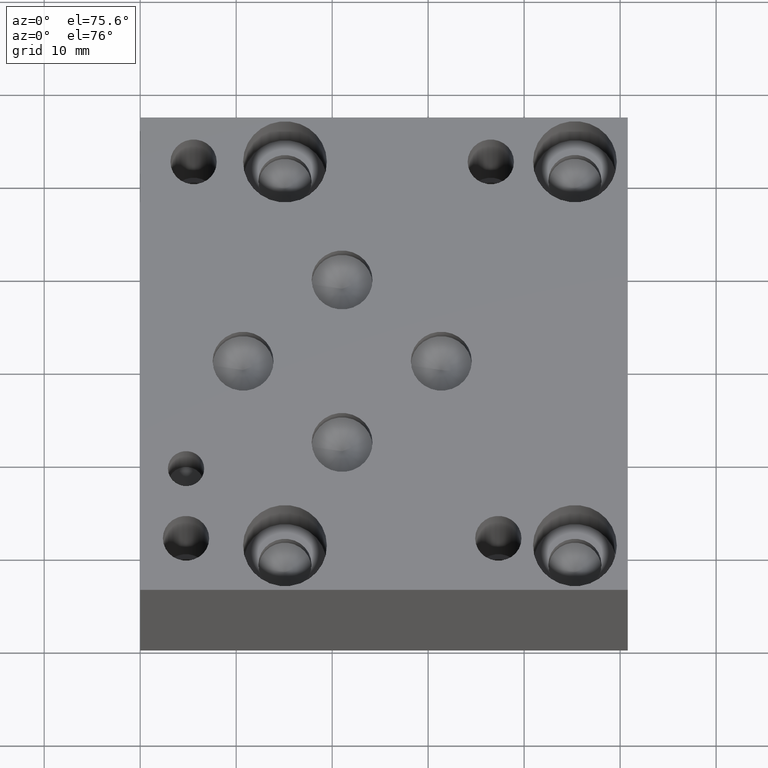
[diagram: clean part render]
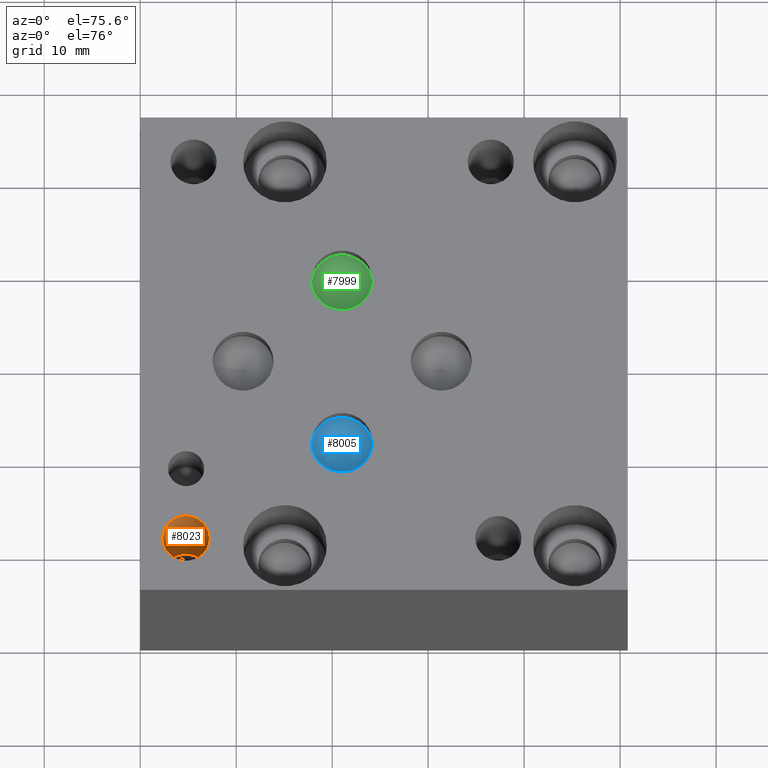
[diagram: same view with three faces highlighted in distinct colors, each labeled with its STEP entity id]
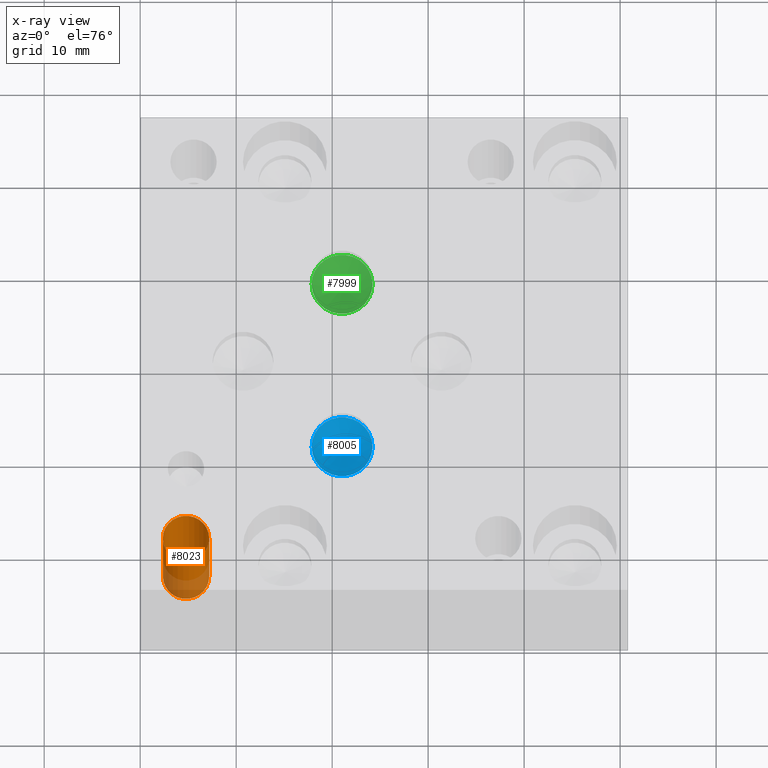
[diagram: x-ray of the same camera — body ghosted, the three highlighted faces saturated]
A machine part, auxiliary view with three faces highlighted in distinct colors.
The next image is the same camera in x-ray (body ghosted, the three faces saturated) — at least one of them is partly hidden behind the body in this view.
Their STEP definitions:

[orange] entity #8023 — the highlighted cylindrical surface (bore or boss wall) has radius 2.413 mm, axis along (0, 0, 1).
#150=CIRCLE('',#8474,2.413);
#151=CIRCLE('',#8475,2.413);
#153=CIRCLE('',#8478,2.413);
#154=CIRCLE('',#8479,2.413);
#186=CYLINDRICAL_SURFACE('',#8477,2.413);
#902=FACE_OUTER_BOUND('',#1351,.T.);
#1351=EDGE_LOOP('',(#6958,#6959,#6960,#6961,#6962,#6963));
#2177=LINE('',#13508,#2984);
#2984=VECTOR('',#10156,2.413);
#3740=VERTEX_POINT('',#13497);
#3741=VERTEX_POINT('',#13498);
#3743=VERTEX_POINT('',#13504);
#3744=VERTEX_POINT('',#13505);
#4829=EDGE_CURVE('',#3740,#3741,#150,.T.);
#4830=EDGE_CURVE('',#3741,#3740,#151,.T.);
#4832=EDGE_CURVE('',#3743,#3744,#153,.T.);
#4833=EDGE_CURVE('',#3744,#3743,#154,.T.);
#4834=EDGE_CURVE('',#3744,#3741,#2177,.T.);
#6958=ORIENTED_EDGE('',*,*,#4832,.F.);
#6959=ORIENTED_EDGE('',*,*,#4833,.F.);
#6960=ORIENTED_EDGE('',*,*,#4834,.T.);
#6961=ORIENTED_EDGE('',*,*,#4829,.F.);
#6962=ORIENTED_EDGE('',*,*,#4830,.F.);
#6963=ORIENTED_EDGE('',*,*,#4834,.F.);
#8023=ADVANCED_FACE('',(#902),#186,.F.);
#8474=AXIS2_PLACEMENT_3D('',#13499,#10144,#10145);
#8475=AXIS2_PLACEMENT_3D('',#13500,#10146,#10147);
#8477=AXIS2_PLACEMENT_3D('',#13503,#10150,#10151);
#8478=AXIS2_PLACEMENT_3D('',#13506,#10152,#10153);
#8479=AXIS2_PLACEMENT_3D('',#13507,#10154,#10155);
#10144=DIRECTION('center_axis',(0.,0.,1.));
#10145=DIRECTION('ref_axis',(1.,0.,0.));
#10146=DIRECTION('center_axis',(0.,0.,1.));
#10147=DIRECTION('ref_axis',(1.,0.,0.));
#10150=DIRECTION('center_axis',(0.,0.,1.));
#10151=DIRECTION('ref_axis',(1.,0.,0.));
#10152=DIRECTION('center_axis',(0.,0.,-1.));
#10153=DIRECTION('ref_axis',(1.,0.,0.));
#10154=DIRECTION('center_axis',(0.,0.,-1.));
#10155=DIRECTION('ref_axis',(1.,0.,0.));
#10156=DIRECTION('',(0.,0.,-1.));
#13497=CARTESIAN_POINT('',(7.1882,5.5372,9.398));
#13498=CARTESIAN_POINT('',(2.3622,5.5372,9.398));
#13499=CARTESIAN_POINT('Origin',(4.7752,5.5372,9.398));
#13500=CARTESIAN_POINT('Origin',(4.7752,5.5372,9.398));
#13503=CARTESIAN_POINT('Origin',(4.7752,5.5372,17.399));
#13504=CARTESIAN_POINT('',(7.1882,5.5372,25.4));
#13505=CARTESIAN_POINT('',(2.3622,5.5372,25.4));
#13506=CARTESIAN_POINT('Origin',(4.7752,5.5372,25.4));
#13507=CARTESIAN_POINT('Origin',(4.7752,5.5372,25.4));
#13508=CARTESIAN_POINT('',(2.3622,5.5372,17.399));

[blue] entity #8005 — the highlighted conical surface has half-angle 60 deg.
#29=CONICAL_SURFACE('',#8425,1.5875,1.0471975511966);
#119=CIRCLE('',#8426,3.175);
#120=CIRCLE('',#8427,3.175);
#884=FACE_OUTER_BOUND('',#1329,.T.);
#1329=EDGE_LOOP('',(#6877,#6878,#6879,#6880));
#2163=LINE('',#13402,#2970);
#2970=VECTOR('',#10036,1.5875);
#3703=VERTEX_POINT('',#13398);
#3704=VERTEX_POINT('',#13399);
#3705=VERTEX_POINT('',#13401);
#4784=EDGE_CURVE('',#3703,#3704,#119,.T.);
#4785=EDGE_CURVE('',#3704,#3705,#2163,.T.);
#4786=EDGE_CURVE('',#3704,#3703,#120,.T.);
#6877=ORIENTED_EDGE('',*,*,#4784,.T.);
#6878=ORIENTED_EDGE('',*,*,#4785,.T.);
#6879=ORIENTED_EDGE('',*,*,#4785,.F.);
#6880=ORIENTED_EDGE('',*,*,#4786,.T.);
#8005=ADVANCED_FACE('',(#884),#29,.F.);
#8425=AXIS2_PLACEMENT_3D('',#13397,#10032,#10033);
#8426=AXIS2_PLACEMENT_3D('',#13400,#10034,#10035);
#8427=AXIS2_PLACEMENT_3D('',#13403,#10037,#10038);
#10032=DIRECTION('center_axis',(0.,0.,1.));
#10033=DIRECTION('ref_axis',(1.,0.,0.));
#10034=DIRECTION('center_axis',(0.,0.,1.));
#10035=DIRECTION('ref_axis',(1.,0.,0.));
#10036=DIRECTION('',(0.866025403784439,1.06057523872491E-16,-0.5));
#10037=DIRECTION('center_axis',(0.,0.,1.));
#10038=DIRECTION('ref_axis',(1.,0.,0.));
#13397=CARTESIAN_POINT('Origin',(21.0312,15.8496,22.6503664476615));
#13398=CARTESIAN_POINT('',(24.2062,15.8496,23.56691));
#13399=CARTESIAN_POINT('',(17.8562,15.8496,23.56691));
#13400=CARTESIAN_POINT('Origin',(21.0312,15.8496,23.56691));
#13401=CARTESIAN_POINT('',(21.0312,15.8496,21.7338228953229));
#13402=CARTESIAN_POINT('',(19.4437,15.8496,22.6503664476615));
#13403=CARTESIAN_POINT('Origin',(21.0312,15.8496,23.56691));

[green] entity #7999 — the highlighted conical surface has half-angle 60 deg.
#26=CONICAL_SURFACE('',#8407,1.5875,1.0471975511966);
#107=CIRCLE('',#8408,3.175);
#108=CIRCLE('',#8409,3.175);
#878=FACE_OUTER_BOUND('',#1323,.T.);
#1323=EDGE_LOOP('',(#6847,#6848,#6849,#6850));
#2157=LINE('',#13363,#2964);
#2964=VECTOR('',#9994,1.5875);
#3688=VERTEX_POINT('',#13359);
#3689=VERTEX_POINT('',#13360);
#3690=VERTEX_POINT('',#13362);
#4766=EDGE_CURVE('',#3688,#3689,#107,.T.);
#4767=EDGE_CURVE('',#3689,#3690,#2157,.T.);
#4768=EDGE_CURVE('',#3689,#3688,#108,.T.);
#6847=ORIENTED_EDGE('',*,*,#4766,.T.);
#6848=ORIENTED_EDGE('',*,*,#4767,.T.);
#6849=ORIENTED_EDGE('',*,*,#4767,.F.);
#6850=ORIENTED_EDGE('',*,*,#4768,.T.);
#7999=ADVANCED_FACE('',(#878),#26,.F.);
#8407=AXIS2_PLACEMENT_3D('',#13358,#9990,#9991);
#8408=AXIS2_PLACEMENT_3D('',#13361,#9992,#9993);
#8409=AXIS2_PLACEMENT_3D('',#13364,#9995,#9996);
#9990=DIRECTION('center_axis',(0.,0.,1.));
#9991=DIRECTION('ref_axis',(1.,0.,0.));
#9992=DIRECTION('center_axis',(0.,0.,1.));
#9993=DIRECTION('ref_axis',(1.,0.,0.));
#9994=DIRECTION('',(0.866025403784439,1.06057523872491E-16,-0.5));
#9995=DIRECTION('center_axis',(0.,0.,1.));
#9996=DIRECTION('ref_axis',(1.,0.,0.));
#13358=CARTESIAN_POINT('Origin',(21.0312,33.3248,22.6503664476615));
#13359=CARTESIAN_POINT('',(24.2062,33.3248,23.56691));
#13360=CARTESIAN_POINT('',(17.8562,33.3248,23.56691));
#13361=CARTESIAN_POINT('Origin',(21.0312,33.3248,23.56691));
#13362=CARTESIAN_POINT('',(21.0312,33.3248,21.7338228953229));
#13363=CARTESIAN_POINT('',(19.4437,33.3248,22.6503664476615));
#13364=CARTESIAN_POINT('Origin',(21.0312,33.3248,23.56691));